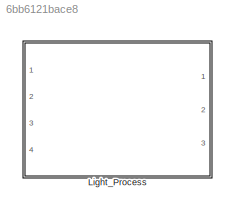
MODEL slx_6bb6121bace8
KIND model
CONFIG AbsTol = auto
CONFIG EnableMultiTasking = off
CONFIG FixedStep = auto
CONFIG MaxStep = auto
CONFIG MinStep = auto
CONFIG RelTol = 1e-3
CONFIG SampleTimeConstraint = Unconstrained
CONFIG Solver = VariableStepAuto
CONFIG SolverName = VariableStepAuto
CONFIG StartTime = 0.0
CONFIG StopTime = 10.0
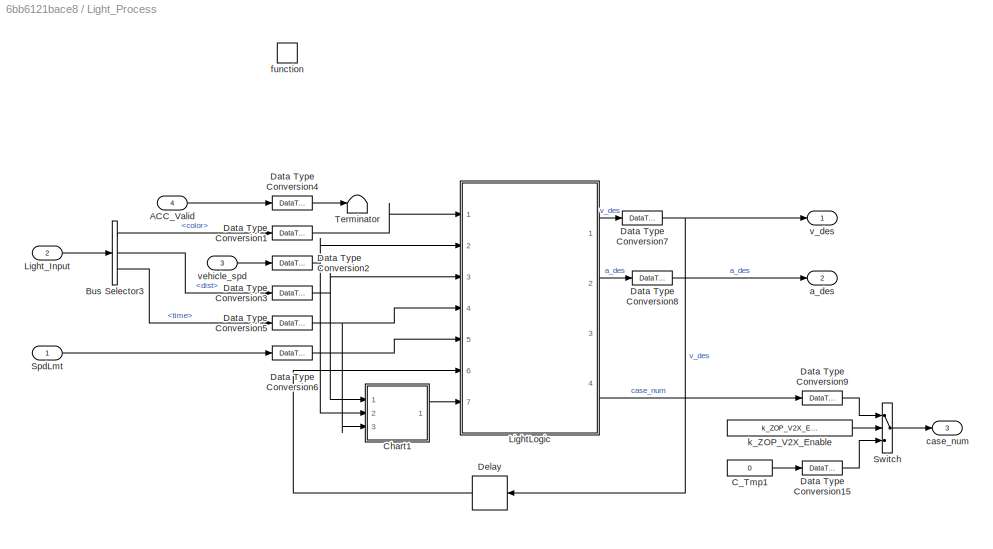
BLOCK [SubSystem] Light_Process
  Ports = [4, 3, 0, 1]
  RequestExecContextInheritance = off
BLOCK [Inport] Light_Process/ACC_Valid
  BusOutputAsStruct = on
  IconDisplay = Port number
  Port = 4
BLOCK [BusSelector] Light_Process/Bus Selector3
  OutputAsBus = off
  OutputSignals = color,dist,time
  Ports = [1, 3]
BLOCK [Constant] Light_Process/C_Tmp1
  Value = 0
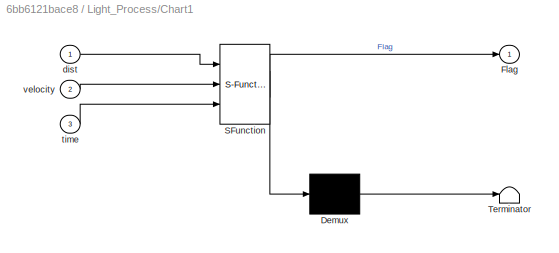
BLOCK [SubSystem] Light_Process/Chart1
  ErrorFcn = Stateflow.Translate.translate
  PermitHierarchicalResolution = ExplicitOnly
  Ports = [3, 1]
  RequestExecContextInheritance = off
  SFBlockType = Chart
  TreatAsAtomicUnit = on
BLOCK [Demux] Light_Process/Chart1/ Demux 
  Outputs = 1
  Ports = [1, 1]
BLOCK [S-Function] Light_Process/Chart1/ SFunction 
  EnableBusSupport = on
  FunctionName = sf_sfun
  PortCounts = [3 2]
  Ports = [3, 2]
  SFcnIsStateOwnerBlock = off
  SFunctionDeploymentMode = off
  Tag = Stateflow S-Function intes_cross_2018b 3
BLOCK [Terminator] Light_Process/Chart1/ Terminator 
BLOCK [Outport] Light_Process/Chart1/Flag
  IconDisplay = Port number
BLOCK [Inport] Light_Process/Chart1/dist
  IconDisplay = Port number
BLOCK [Inport] Light_Process/Chart1/time
  IconDisplay = Port number
  Port = 3
BLOCK [Inport] Light_Process/Chart1/velocity
  IconDisplay = Port number
  Port = 2
BLOCK [DataTypeConversion] Light_Process/Data Type Conversion1
  OutDataTypeStr = double
  RndMeth = Floor
  SaturateOnIntegerOverflow = off
BLOCK [DataTypeConversion] Light_Process/Data Type Conversion15
  RndMeth = Floor
  SaturateOnIntegerOverflow = off
BLOCK [DataTypeConversion] Light_Process/Data Type Conversion2
  OutDataTypeStr = double
  RndMeth = Floor
  SaturateOnIntegerOverflow = off
BLOCK [DataTypeConversion] Light_Process/Data Type Conversion3
  OutDataTypeStr = double
  RndMeth = Floor
  SaturateOnIntegerOverflow = off
BLOCK [DataTypeConversion] Light_Process/Data Type Conversion4
  OutDataTypeStr = double
  RndMeth = Floor
  SaturateOnIntegerOverflow = off
BLOCK [DataTypeConversion] Light_Process/Data Type Conversion5
  OutDataTypeStr = double
  RndMeth = Floor
  SaturateOnIntegerOverflow = off
BLOCK [DataTypeConversion] Light_Process/Data Type Conversion6
  OutDataTypeStr = double
  RndMeth = Floor
  SaturateOnIntegerOverflow = off
BLOCK [DataTypeConversion] Light_Process/Data Type Conversion7
  OutDataTypeStr = double
  RndMeth = Floor
  SaturateOnIntegerOverflow = off
BLOCK [DataTypeConversion] Light_Process/Data Type Conversion8
  OutDataTypeStr = double
  RndMeth = Floor
  SaturateOnIntegerOverflow = off
BLOCK [DataTypeConversion] Light_Process/Data Type Conversion9
  RndMeth = Floor
  SaturateOnIntegerOverflow = off
BLOCK [Delay] Light_Process/Delay
  DelayLength = 1
  InputPortMap = u0
  Ports = [1, 1]
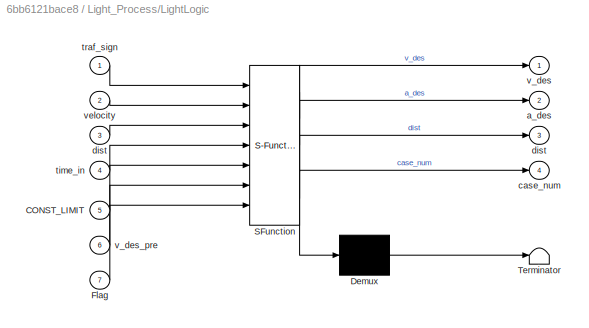
BLOCK [SubSystem] Light_Process/LightLogic
  ErrorFcn = Stateflow.Translate.translate
  PermitHierarchicalResolution = ExplicitOnly
  Ports = [7, 4]
  RequestExecContextInheritance = off
  SFBlockType = MATLAB Function
  TreatAsAtomicUnit = on
BLOCK [Demux] Light_Process/LightLogic/ Demux 
  Outputs = 1
  Ports = [1, 1]
BLOCK [S-Function] Light_Process/LightLogic/ SFunction 
  EnableBusSupport = on
  FunctionName = sf_sfun
  PortCounts = [7 5]
  Ports = [7, 5]
  SFcnIsStateOwnerBlock = off
  SFunctionDeploymentMode = off
  Tag = Stateflow S-Function intes_cross_2018b 9
BLOCK [Terminator] Light_Process/LightLogic/ Terminator 
BLOCK [Inport] Light_Process/LightLogic/CONST_LIMIT
  IconDisplay = Port number
  Port = 5
BLOCK [Inport] Light_Process/LightLogic/Flag
  IconDisplay = Port number
  Port = 7
BLOCK [Outport] Light_Process/LightLogic/a_des
  IconDisplay = Port number
  Port = 2
  VectorParamsAs1DForOutWhenUnconnected = on
BLOCK [Outport] Light_Process/LightLogic/case_num
  IconDisplay = Port number
  Port = 4
  VectorParamsAs1DForOutWhenUnconnected = on
BLOCK [Outport] Light_Process/LightLogic/dist
  IconDisplay = Port number
  Port = 3
  VectorParamsAs1DForOutWhenUnconnected = on
BLOCK [Inport] Light_Process/LightLogic/dist 
  IconDisplay = Port number
  Port = 3
BLOCK [Inport] Light_Process/LightLogic/time_in
  IconDisplay = Port number
  Port = 4
BLOCK [Inport] Light_Process/LightLogic/traf_sign
  IconDisplay = Port number
BLOCK [Outport] Light_Process/LightLogic/v_des
  IconDisplay = Port number
  VectorParamsAs1DForOutWhenUnconnected = on
BLOCK [Inport] Light_Process/LightLogic/v_des_pre
  IconDisplay = Port number
  Port = 6
BLOCK [Inport] Light_Process/LightLogic/velocity
  IconDisplay = Port number
  Port = 2
BLOCK [Inport] Light_Process/Light_Input
  BusOutputAsStruct = on
  IconDisplay = Port number
  OutDataTypeStr = Bus: Light_Info_ST
  Port = 2
BLOCK [Inport] Light_Process/SpdLmt
  BusOutputAsStruct = on
  IconDisplay = Port number
BLOCK [Switch] Light_Process/Switch
  Criteria = u2 > Threshold
  InputSameDT = off
  SaturateOnIntegerOverflow = off
  Threshold = 0.5
BLOCK [Terminator] Light_Process/Terminator
BLOCK [Outport] Light_Process/a_des
  IconDisplay = Port number
  Port = 2
BLOCK [Outport] Light_Process/case_num
  IconDisplay = Port number
  Port = 3
BLOCK [TriggerPort] Light_Process/function
  Ports = []
  StatesWhenEnabling = held
  TriggerType = function-call
  VariantControl = Variant
BLOCK [Constant] Light_Process/k_ZOP_V2X_Enable
  Value = k_ZOP_V2X_Enable
BLOCK [Outport] Light_Process/v_des
  IconDisplay = Port number
BLOCK [Inport] Light_Process/vehicle_spd
  BusOutputAsStruct = on
  IconDisplay = Port number
  Port = 3
LINE Light_Process/ACC_Valid:1 -> Light_Process/Data Type Conversion4:1
LINE Light_Process/Bus Selector3:1 -> Light_Process/Data Type Conversion1:1
LINE Light_Process/Bus Selector3:2 -> Light_Process/Data Type Conversion3:1
LINE Light_Process/Bus Selector3:3 -> Light_Process/Data Type Conversion5:1
LINE Light_Process/C_Tmp1:1 -> Light_Process/Data Type Conversion15:1
LINE Light_Process/Chart1:1 -> Light_Process/LightLogic:7
LINE Light_Process/Data Type Conversion15:1 -> Light_Process/Switch:3
LINE Light_Process/Data Type Conversion1:1 -> Light_Process/LightLogic:1
NET Light_Process/Data Type Conversion2:1 -> Light_Process/Chart1:2, Light_Process/LightLogic:2
NET Light_Process/Data Type Conversion3:1 -> Light_Process/Chart1:1, Light_Process/LightLogic:3
LINE Light_Process/Data Type Conversion4:1 -> Light_Process/Terminator:1
NET Light_Process/Data Type Conversion5:1 -> Light_Process/Chart1:3, Light_Process/LightLogic:4
LINE Light_Process/Data Type Conversion6:1 -> Light_Process/LightLogic:5
NET Light_Process/Data Type Conversion7:1 -> Light_Process/Delay:1, Light_Process/v_des:1
LINE Light_Process/Data Type Conversion8:1 -> Light_Process/a_des:1
LINE Light_Process/Data Type Conversion9:1 -> Light_Process/Switch:1
LINE Light_Process/Delay:1 -> Light_Process/LightLogic:6
LINE Light_Process/LightLogic:1 -> Light_Process/Data Type Conversion7:1
LINE Light_Process/LightLogic:2 -> Light_Process/Data Type Conversion8:1
LINE Light_Process/LightLogic:4 -> Light_Process/Data Type Conversion9:1
LINE Light_Process/Light_Input:1 -> Light_Process/Bus Selector3:1
LINE Light_Process/SpdLmt:1 -> Light_Process/Data Type Conversion6:1
LINE Light_Process/Switch:1 -> Light_Process/case_num:1
LINE Light_Process/k_ZOP_V2X_Enable:1 -> Light_Process/Switch:2
LINE Light_Process/vehicle_spd:1 -> Light_Process/Data Type Conversion2:1
note: NET lines group one-source signal fan-out (src -> all destinations, sorted); 1:1 wires keep LINE
CHART Light_Process/Chart1 states=3 transitions=4
  STATE_LABEL 'init\nen:\nFlag=0;'
  STATE_LABEL 'Off\nen:\nFlag=0;'
  STATE_LABEL 'On\ndu:\nFlag=1;'
CHART Light_Process/LightLogic states=1 transitions=1
  STATE_LABEL 'eML_blk_kernel()'
  STATE_LABEL 'SCRIPT:\nfunction [v_des,a_des,dist,case_num] = intesec_cross( traf_sign, velocity, dist, time_in,CONST_LIMIT,v_des_pre,Flag)  \n%% this is a function that provide desired velocity, and distance to traffic light;\n    % input: trafic_sign with green = 0; red = 1; yellow = 2;\n    %        velocity in unit of kph;\n    %        dist, and time is distance(m) to cross, and traffic time left\n    %        C...<+3608ch>'
